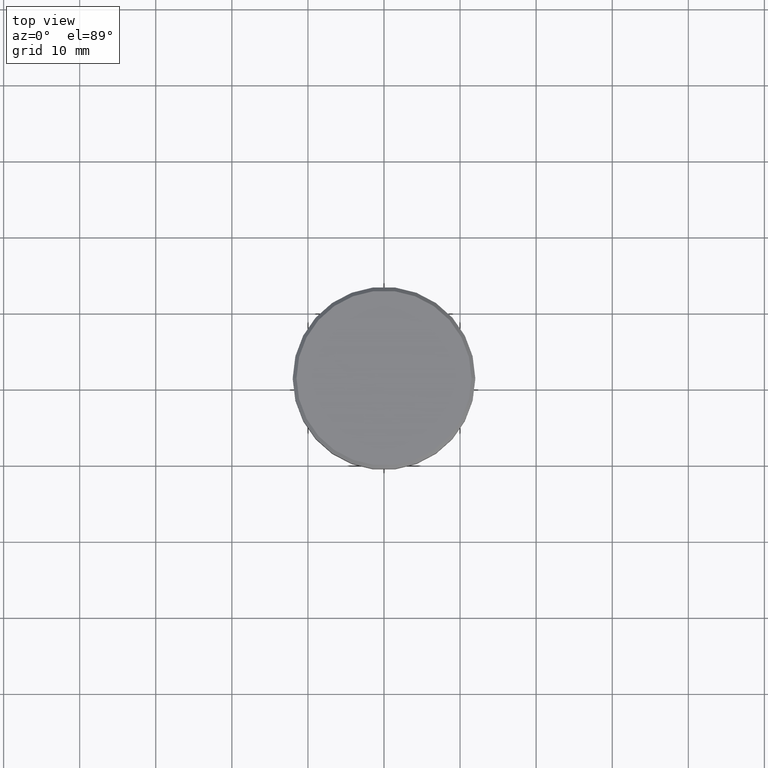
[diagram: clean part render]
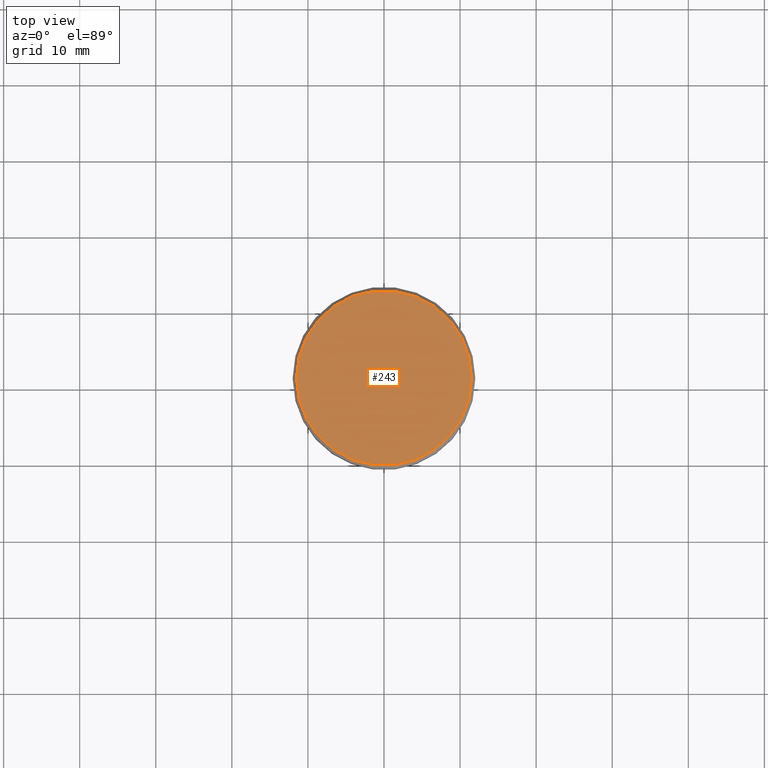
[diagram: same view with one face highlighted and labeled with its STEP entity id]
A machine part, top view. The second image highlights one B-rep face of the part: STEP entity #243.
In plain terms, the highlighted planar face has unit normal (0, -0, 1).
Its self-contained STEP definition (entity closure, byte-faithful):
#8 = EDGE_LOOP ( 'NONE', ( #511, #531 ) ) ;
#74 = DIRECTION ( 'NONE',  ( -0.000000000000000000, -0.000000000000000000, 1.000000000000000000 ) ) ;
#83 = VERTEX_POINT ( 'NONE', #576 ) ;
#90 = EDGE_CURVE ( 'NONE', #440, #83, #122, .T. ) ;
#91 = FACE_OUTER_BOUND ( 'NONE', #8, .T. ) ;
#102 = AXIS2_PLACEMENT_3D ( 'NONE', #337, #417, #422 ) ;
#122 = CIRCLE ( 'NONE', #453, 11.50000000000000533 ) ;
#161 = CARTESIAN_POINT ( 'NONE',  ( -11.50000000000000533, 0.000000000000000000, 0.000000000000000000 ) ) ;
#191 = CIRCLE ( 'NONE', #278, 11.50000000000000533 ) ;
#242 = DIRECTION ( 'NONE',  ( 1.000000000000000000, 0.000000000000000000, 0.000000000000000000 ) ) ;
#243 = ADVANCED_FACE ( 'NONE', ( #91 ), #382, .T. ) ;
#278 = AXIS2_PLACEMENT_3D ( 'NONE', #497, #74, #451 ) ;
#337 = CARTESIAN_POINT ( 'NONE',  ( 0.000000000000000000, 0.000000000000000000, 0.000000000000000000 ) ) ;
#381 = CARTESIAN_POINT ( 'NONE',  ( 0.000000000000000000, 0.000000000000000000, 0.000000000000000000 ) ) ;
#382 = PLANE ( 'NONE',  #102 ) ;
#417 = DIRECTION ( 'NONE',  ( 0.000000000000000000, -0.000000000000000000, 1.000000000000000000 ) ) ;
#422 = DIRECTION ( 'NONE',  ( 1.000000000000000000, 0.000000000000000000, 0.000000000000000000 ) ) ;
#440 = VERTEX_POINT ( 'NONE', #161 ) ;
#451 = DIRECTION ( 'NONE',  ( 1.000000000000000000, 0.000000000000000000, 0.000000000000000000 ) ) ;
#453 = AXIS2_PLACEMENT_3D ( 'NONE', #381, #472, #242 ) ;
#472 = DIRECTION ( 'NONE',  ( -0.000000000000000000, -0.000000000000000000, 1.000000000000000000 ) ) ;
#497 = CARTESIAN_POINT ( 'NONE',  ( 0.000000000000000000, 0.000000000000000000, 0.000000000000000000 ) ) ;
#508 = EDGE_CURVE ( 'NONE', #83, #440, #191, .T. ) ;
#511 = ORIENTED_EDGE ( 'NONE', *, *, #90, .T. ) ;
#531 = ORIENTED_EDGE ( 'NONE', *, *, #508, .T. ) ;
#576 = CARTESIAN_POINT ( 'NONE',  ( 11.50000000000000533, 1.438959988998140357E-15, 0.000000000000000000 ) ) ;